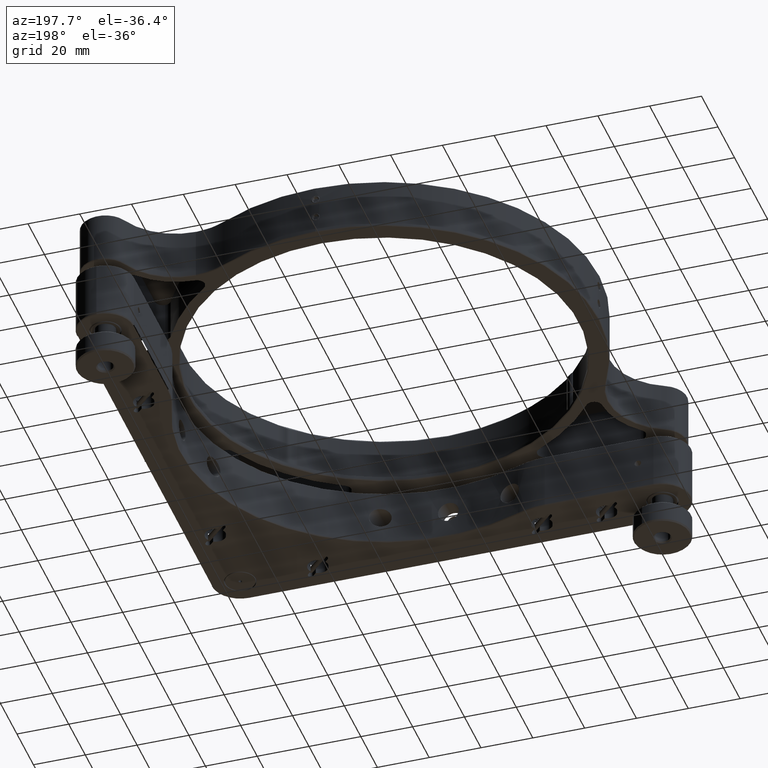
[diagram: clean part render]
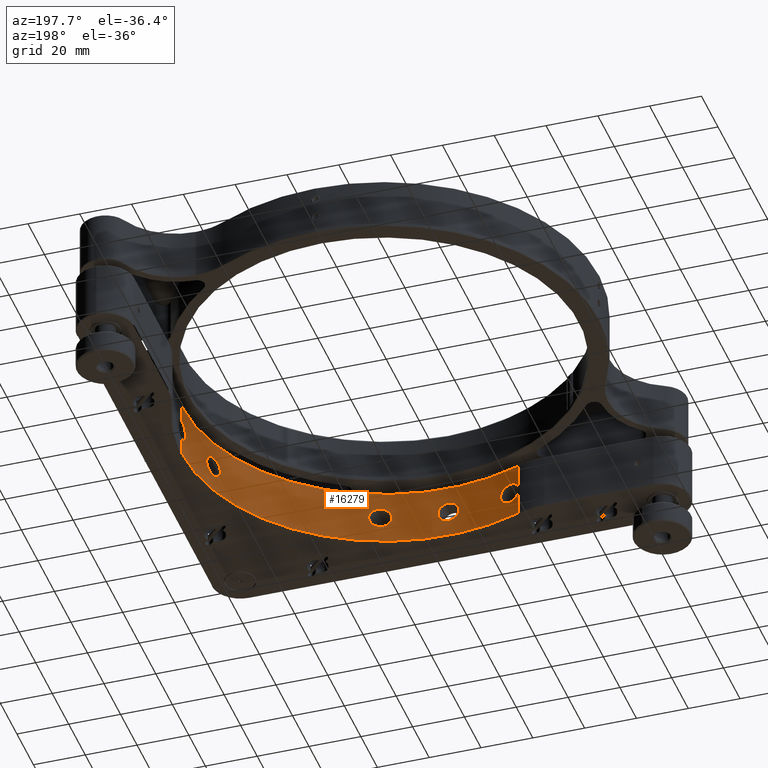
[diagram: same view with one face highlighted and labeled with its STEP entity id]
A machine part, auxiliary view. The second image highlights one B-rep face of the part: STEP entity #16279.
In plain terms, the highlighted cylindrical surface (partial cylindrical patch) has radius 78 mm, axis along (-0, -0, 1).
Its self-contained STEP definition (entity closure, byte-faithful):
#49 = DIRECTION ( 'NONE',  ( -0.000000000000000000, -0.000000000000000000, 1.000000000000000000 ) ) ;
#67 = CARTESIAN_POINT ( 'NONE',  ( 72.57865478690735017, -28.57186707354512833, 1.820078764585681741 ) ) ;
#71 = CARTESIAN_POINT ( 'NONE',  ( 73.88504584826351618, -24.99999999999998224, -3.999999999999991562 ) ) ;
#75 = CARTESIAN_POINT ( 'NONE',  ( 77.91714599270930819, -3.595598559437067632, 1.771876983716809795 ) ) ;
#86 = EDGE_CURVE ( 'NONE', #19470, #2084, #14475, .T. ) ;
#97 = CYLINDRICAL_SURFACE ( 'NONE', #5205, 78.00000000000000000 ) ;
#162 = CARTESIAN_POINT ( 'NONE',  ( 73.03012696881967258, -27.39805701205474264, -3.211788647848638156 ) ) ;
#167 = CARTESIAN_POINT ( 'NONE',  ( 75.05906071340405106, -21.21671753476268663, -1.325550393028374740 ) ) ;
#169 = CARTESIAN_POINT ( 'NONE',  ( 77.92288107885735826, -3.470678907385455148, -2.005573438225844551 ) ) ;
#334 = CARTESIAN_POINT ( 'NONE',  ( 23.99240517857199606, -74.21882051579675021, 3.879335930862897186 ) ) ;
#340 = CARTESIAN_POINT ( 'NONE',  ( -28.55975704067207488, -72.58333333333335702, -11.00000000000000000 ) ) ;
#362 = CARTESIAN_POINT ( 'NONE',  ( 73.44723782220397368, -26.25961089667580595, -3.805144757495733998 ) ) ;
#550 = CARTESIAN_POINT ( 'NONE',  ( -3.181061825837070867, -77.93524140828793634, -2.439012618763904072 ) ) ;
#643 = B_SPLINE_CURVE_WITH_KNOTS ( 'NONE', 3,
 ( #9172, #16576, #19429, #4621, #4520, #14998, #18048, #10554, #12038, #13417, #1363, #3042, #75, #7595, #6205, #12241, #17949, #18252, #16871, #18145, #13622, #7392, #169, #16682, #15203, #6108, #6009, #9068, #3144, #7691, #1562, #15104, #12137, #16779 ),
 .UNSPECIFIED., .F., .F.,
 ( 4, 2, 2, 2, 2, 2, 2, 2, 2, 2, 2, 2, 2, 2, 2, 2, 4 ),
 ( 4.395466612126818234E-20, 0.0007817422773618290174, 0.001563484554723658469, 0.002345226832085487052, 0.003126969109447316070, 0.003908711386809145087, 0.004690453664170974105, 0.005472195941532803122, 0.006253938218894632139, 0.007035680496256461157, 0.007817422773618290174, 0.008599165050980118324, 0.009380907328341948209, 0.01016264960570377809, 0.01094439188306560624, 0.01172613416042743439, 0.01250787643778926428 ),
 .UNSPECIFIED. ) ;
#650 = CARTESIAN_POINT ( 'NONE',  ( -3.595964814120648168, -77.91712968579540188, -1.771362540339814551 ) ) ;
#719 = CARTESIAN_POINT ( 'NONE',  ( 73.71026475055948879, -25.51209117919595926, 3.975223860204486481 ) ) ;
#745 = CARTESIAN_POINT ( 'NONE',  ( -3.871833715960109945, -77.90386092381194771, 1.038368804854522542 ) ) ;
#901 = CARTESIAN_POINT ( 'NONE',  ( 0.2642756697585024184, -78.00000000000001421, 3.999999999999994227 ) ) ;
#931 = CARTESIAN_POINT ( 'NONE',  ( -23.99328243118324622, -74.21854264774493970, -3.879664111582092012 ) ) ;
#948 = CARTESIAN_POINT ( 'NONE',  ( -1.774081866758450809, -77.98019828597287528, 3.594632870111592382 ) ) ;
#993 = CARTESIAN_POINT ( 'NONE',  ( 28.97154074426632420, -72.41997851193785607, -0.5472349680986610121 ) ) ;
#999 = CARTESIAN_POINT ( 'NONE',  ( 3.999781293421629691, -77.89737960709692288, -0.2671534340271403130 ) ) ;
#1028 = CARTESIAN_POINT ( 'NONE',  ( 0.000000000000000000, 0.000000000000000000, -11.00000000000000000 ) ) ;
#1033 = CARTESIAN_POINT ( 'NONE',  ( -22.59489988606504696, -74.65602845485361172, 3.206778632898351411 ) ) ;
#1088 = CARTESIAN_POINT ( 'NONE',  ( 28.86626673872807913, -72.46200357922833746, 1.060209643100572308 ) ) ;
#1094 = CARTESIAN_POINT ( 'NONE',  ( 2.444840462788688384, -77.96198046153405414, 3.176748857549436700 ) ) ;
#1125 = CARTESIAN_POINT ( 'NONE',  ( -22.60369669649290358, -74.65336722089199384, -3.213370268778872774 ) ) ;
#1258 = CARTESIAN_POINT ( 'NONE',  ( 25.00000000000000711, -73.88504584826350197, 3.999999999999998224 ) ) ;
#1283 = CARTESIAN_POINT ( 'NONE',  ( 28.44250603950921885, -72.62954007564020742, -2.054199999669094279 ) ) ;
#1363 = CARTESIAN_POINT ( 'NONE',  ( 77.93532923654449007, -3.178973246191488133, 2.441990088289993643 ) ) ;
#1377 = CARTESIAN_POINT ( 'NONE',  ( 28.99934265684701984, -72.40882629869744846, -0.2800717362526508603 ) ) ;
#1499 = CARTESIAN_POINT ( 'NONE',  ( -27.22105338308170630, -73.09611201008802084, 3.331623792669954565 ) ) ;
#1529 = CARTESIAN_POINT ( 'NONE',  ( 22.59948685668774715, -74.65463576104080801, -3.210070543919473440 ) ) ;
#1562 = CARTESIAN_POINT ( 'NONE',  ( 77.99350259600736024, -1.038872687293739716, -3.871570120535715365 ) ) ;
#1658 = CARTESIAN_POINT ( 'NONE',  ( 74.96352919145894589, -21.55212286694406743, -2.045295803821513214 ) ) ;
#1755 = CARTESIAN_POINT ( 'NONE',  ( 74.29853247817517570, -23.74426298476860353, -3.806385302535675308 ) ) ;
#1802 = CARTESIAN_POINT ( 'NONE',  ( -27.22205891709224446, -73.09573881722749888, -3.330987645164114053 ) ) ;
#1819 = CARTESIAN_POINT ( 'NONE',  ( 20.99972270542378538, -75.11998167185296893, -0.2627213754481366736 ) ) ;
#1852 = CARTESIAN_POINT ( 'NONE',  ( 75.06066801426244695, -21.21103293928340250, 1.309880171108322333 ) ) ;
#2035 = CARTESIAN_POINT ( 'NONE',  ( -3.871916372575670007, -77.90385663892008949, -1.037633705012990459 ) ) ;
#2084 = VERTEX_POINT ( 'NONE', #5154 ) ;
#2110 = DIRECTION ( 'NONE',  ( 1.000000000000000000, 0.000000000000000000, 0.000000000000000000 ) ) ;
#2203 = CARTESIAN_POINT ( 'NONE',  ( 72.46251476229139143, -28.86498495242403806, -1.065468717979328295 ) ) ;
#2230 = CARTESIAN_POINT ( 'NONE',  ( -3.471378386552586015, -77.92285252867712586, 2.004674185169120992 ) ) ;
#2316 = CARTESIAN_POINT ( 'NONE',  ( -22.01723765412725697, -74.82833316180936833, 2.678010543228571905 ) ) ;
#2330 = CARTESIAN_POINT ( 'NONE',  ( -3.974073061221889525, -77.89871217753025689, -0.5245602025211165698 ) ) ;
#2381 = CARTESIAN_POINT ( 'NONE',  ( 2.645989248474492683, -77.95532568294639475, 3.011124433643795228 ) ) ;
#2396 = VERTEX_POINT ( 'NONE', #13548 ) ;
#2415 = CARTESIAN_POINT ( 'NONE',  ( -28.55975704067207488, -72.58333333333335702, 10.70000000000000462 ) ) ;
#2479 = CARTESIAN_POINT ( 'NONE',  ( 28.57034378668507202, -72.57925430393584065, -1.822944101926049720 ) ) ;
#2502 = EDGE_CURVE ( 'NONE', #3900, #10038, #12996, .T. ) ;
#2578 = CARTESIAN_POINT ( 'NONE',  ( 29.00063453752907350, -72.40830889410995042, 0.2609696561924710889 ) ) ;
#2595 = ORIENTED_EDGE ( 'NONE', *, *, #3130, .T. ) ;
#2666 = CARTESIAN_POINT ( 'NONE',  ( 25.51356117900124687, -73.70976635008814526, 3.975215644761352696 ) ) ;
#2672 = CARTESIAN_POINT ( 'NONE',  ( 1.288927170577639503, -77.98972126068761668, -3.795592560333966414 ) ) ;
#2830 = VERTEX_POINT ( 'NONE', #3356 ) ;
#2944 = EDGE_CURVE ( 'NONE', #11662, #2396, #5994, .T. ) ;
#3005 = CARTESIAN_POINT ( 'NONE',  ( 21.13342176601295819, -75.08249837524934378, -1.059061465847109362 ) ) ;
#3026 = CARTESIAN_POINT ( 'NONE',  ( -28.55975704067207488, -72.58333333333335702, -11.00000000000000000 ) ) ;
#3034 = CARTESIAN_POINT ( 'NONE',  ( 73.03188582951041496, -27.39336444194073295, 3.215229633219239602 ) ) ;
#3042 = CARTESIAN_POINT ( 'NONE',  ( 77.92285252867712586, -3.471378386552571804, 2.004674185169120992 ) ) ;
#3064 = FACE_OUTER_BOUND ( 'NONE', #12655, .T. ) ;
#3078 = CARTESIAN_POINT ( 'NONE',  ( -28.37543298956789783, -72.65568101031951187, 2.154275530396135618 ) ) ;
#3086 = CARTESIAN_POINT ( 'NONE',  ( -26.91086405448526264, -73.21087979776633858, -3.518753058761190822 ) ) ;
#3130 = EDGE_CURVE ( 'NONE', #13238, #16090, #16736, .T. ) ;
#3136 = CARTESIAN_POINT ( 'NONE',  ( 72.74459379685502824, -28.14693070726938728, -2.483180130910042749 ) ) ;
#3141 = CARTESIAN_POINT ( 'NONE',  ( 73.97064634969750330, -24.74701612107660154, -3.999999999999990674 ) ) ;
#3144 = CARTESIAN_POINT ( 'NONE',  ( 77.98022342668966189, -1.772997806453662673, -3.595177367259070778 ) ) ;
#3209 = CARTESIAN_POINT ( 'NONE',  ( 21.13557142552287260, -75.08189379694994159, 1.067109936542361304 ) ) ;
#3236 = CARTESIAN_POINT ( 'NONE',  ( 72.63022600161149001, -28.44074484423013871, 2.056788287341680732 ) ) ;
#3285 = CARTESIAN_POINT ( 'NONE',  ( -25.72441926667101697, -73.63687478941228903, -3.950248637414554231 ) ) ;
#3301 = CARTESIAN_POINT ( 'NONE',  ( 21.02659460353410026, -75.11248496214287229, -0.5329990462658509287 ) ) ;
#3328 = CARTESIAN_POINT ( 'NONE',  ( 73.27548003730198900, -26.73514416379994785, -3.613173254544084223 ) ) ;
#3332 = CARTESIAN_POINT ( 'NONE',  ( 74.99993230447621784, -21.42479527212264401, -1.813345309088485235 ) ) ;
#3354 = CARTESIAN_POINT ( 'NONE',  ( 73.88504584826351618, -24.99999999999998224, 3.999999999999998224 ) ) ;
#3356 = CARTESIAN_POINT ( 'NONE',  ( 25.00000000000000355, -73.88504584826348776, -3.999999999999991562 ) ) ;
#3372 = ORIENTED_EDGE ( 'NONE', *, *, #17451, .T. ) ;
#3393 = CARTESIAN_POINT ( 'NONE',  ( 21.42001768455125088, -75.00129663569731520, -1.804092950068598489 ) ) ;
#3424 = CARTESIAN_POINT ( 'NONE',  ( 73.53415876494440795, -26.01534311378234321, -3.877414656770550749 ) ) ;
#3428 = CARTESIAN_POINT ( 'NONE',  ( 75.00129449863017328, -21.42002858607879290, 1.804400766283678959 ) ) ;
#3706 = CARTESIAN_POINT ( 'NONE',  ( -1.038872687293755481, -77.99350259600736024, -3.871570120535715365 ) ) ;
#3848 = VERTEX_POINT ( 'NONE', #19544 ) ;
#3861 = CARTESIAN_POINT ( 'NONE',  ( 3.183631161174377500, -77.93513655736296641, 2.435713553613453097 ) ) ;
#3898 = CARTESIAN_POINT ( 'NONE',  ( -27.37032204770689958, -73.04032375761811124, 3.227299997954521604 ) ) ;
#3900 = VERTEX_POINT ( 'NONE', #4738 ) ;
#3998 = CARTESIAN_POINT ( 'NONE',  ( -24.99999999999999289, -73.88504584826351618, 3.999999999999998224 ) ) ;
#4053 = CARTESIAN_POINT ( 'NONE',  ( 25.25515864112303888, -73.79870948675976194, -3.999999999999993339 ) ) ;
#4058 = CARTESIAN_POINT ( 'NONE',  ( 7.428752638015980296E-15, -78.00000000000000000, -3.999999999999994227 ) ) ;
#4089 = CARTESIAN_POINT ( 'NONE',  ( -23.03138584217391482, -74.52252915529723509, 3.491775201250789884 ) ) ;
#4147 = CARTESIAN_POINT ( 'NONE',  ( 26.73225172150400297, -73.27653016459150592, -3.614450908164578813 ) ) ;
#4185 = CARTESIAN_POINT ( 'NONE',  ( -23.26305980556527331, -74.45060192349109229, 3.612299662698405633 ) ) ;
#4337 = CARTESIAN_POINT ( 'NONE',  ( 25.00000000000000355, -73.88504584826348776, -3.999999999999991562 ) ) ;
#4488 = CARTESIAN_POINT ( 'NONE',  ( 22.02093770999001521, -74.82724554628276792, 2.682148345335553685 ) ) ;
#4517 = CARTESIAN_POINT ( 'NONE',  ( 75.08191856841457934, -21.13548269788657663, -1.066384402953992394 ) ) ;
#4520 = CARTESIAN_POINT ( 'NONE',  ( 77.98971402692833976, -1.289650025219116314, 3.795465024644563368 ) ) ;
#4612 = CARTESIAN_POINT ( 'NONE',  ( 72.95428721318155851, -27.59913240690869074, 3.051651704380228480 ) ) ;
#4621 = CARTESIAN_POINT ( 'NONE',  ( 77.99354430105371705, -1.035576530980324206, 3.872406130247564526 ) ) ;
#4719 = CARTESIAN_POINT ( 'NONE',  ( 72.46370974712081647, -28.86198626848741711, 1.076104579194006483 ) ) ;
#4725 = LINE ( 'NONE', #9269, #6388 ) ;
#4738 = CARTESIAN_POINT ( 'NONE',  ( 7.428752638015980296E-15, -78.00000000000000000, -3.999999999999994227 ) ) ;
#4789 = CARTESIAN_POINT ( 'NONE',  ( 21.21509604521978432, -75.05951879981103048, 1.320974813207124621 ) ) ;
#4797 = DIRECTION ( 'NONE',  ( 0.000000000000000000, 0.000000000000000000, 1.000000000000000000 ) ) ;
#4867 = CARTESIAN_POINT ( 'NONE',  ( -26.41398812150187325, -73.39163900232311732, -3.746141118746442622 ) ) ;
#4882 = CARTESIAN_POINT ( 'NONE',  ( 22.60384532486322229, -74.65331554299052641, 3.213287536556374224 ) ) ;
#4907 = CARTESIAN_POINT ( 'NONE',  ( 73.79869419057914115, -25.25520384748331537, -3.999999999999992450 ) ) ;
#4931 = EDGE_CURVE ( 'NONE', #18086, #2830, #18729, .T. ) ;
#5154 = CARTESIAN_POINT ( 'NONE',  ( 73.88504584826351618, -24.99999999999998224, -3.999999999999991562 ) ) ;
#5195 = CARTESIAN_POINT ( 'NONE',  ( -2.006794043150275098, -77.97448132049481728, -3.469968073289010579 ) ) ;
#5205 = AXIS2_PLACEMENT_3D ( 'NONE', #1028, #17516, #16499 ) ;
#5275 = VECTOR ( 'NONE', #9054, 1000.000000000000000 ) ;
#5309 = ORIENTED_EDGE ( 'NONE', *, *, #13556, .F. ) ;
#5379 = CARTESIAN_POINT ( 'NONE',  ( -23.04123831673606304, -74.51948522766215888, -3.497323358634151447 ) ) ;
#5449 = CARTESIAN_POINT ( 'NONE',  ( 0.5204713056522372039, -77.99868971635731896, -3.974695825513904879 ) ) ;
#5540 = CARTESIAN_POINT ( 'NONE',  ( 2.008475715716599552, -77.97444240052298881, 3.469150255005847949 ) ) ;
#5637 = CARTESIAN_POINT ( 'NONE',  ( 28.77994394578587745, -72.49639664067579758, -1.335104385650924597 ) ) ;
#5643 = CARTESIAN_POINT ( 'NONE',  ( 3.473315906907515682, -77.92276364577965353, 2.001070837446798034 ) ) ;
#5677 = CARTESIAN_POINT ( 'NONE',  ( -21.42002858607880000, -75.00129449863015907, 1.804400766283676738 ) ) ;
#5741 = CARTESIAN_POINT ( 'NONE',  ( 3.794495514598793307, -77.90771410403802122, -1.292434477358247014 ) ) ;
#5830 = CARTESIAN_POINT ( 'NONE',  ( 26.96697085322626464, -73.19041239084945971, 3.492651496314132853 ) ) ;
#5949 = CARTESIAN_POINT ( 'NONE',  ( -27.65674242214645417, -72.93235236990450687, 2.995932507419028390 ) ) ;
#5958 = CARTESIAN_POINT ( 'NONE',  ( -26.24400230785020938, -73.45261133346669169, -3.805886250388128111 ) ) ;
#5994 = LINE ( 'NONE', #3026, #5275 ) ;
#6009 = CARTESIAN_POINT ( 'NONE',  ( 77.96212707202002434, -2.440020888850041647, -3.180282821266665394 ) ) ;
#6076 = ORIENTED_EDGE ( 'NONE', *, *, #9535, .T. ) ;
#6079 = CARTESIAN_POINT ( 'NONE',  ( 22.39650519350028546, -74.71569399255065491, 3.048039807265448875 ) ) ;
#6083 = LINE ( 'NONE', #340, #19384 ) ;
#6106 = CARTESIAN_POINT ( 'NONE',  ( 74.65602845485361172, -22.59489988606503630, 3.206778632898348746 ) ) ;
#6108 = CARTESIAN_POINT ( 'NONE',  ( 77.95545351511327681, -2.642377946310542125, -3.014558976656168010 ) ) ;
#6151 = CARTESIAN_POINT ( 'NONE',  ( -27.65541960861490267, -72.93285174108396518, -2.997025240511474120 ) ) ;
#6198 = CARTESIAN_POINT ( 'NONE',  ( 73.19054374406887575, -26.96659562431388579, -3.492673102645565297 ) ) ;
#6205 = CARTESIAN_POINT ( 'NONE',  ( 77.90386092381194771, -3.871833715960093958, 1.038368804854522098 ) ) ;
#6388 = VECTOR ( 'NONE', #7690, 1000.000000000000000 ) ;
#6399 = CARTESIAN_POINT ( 'NONE',  ( 75.12005645565098177, -20.99945519364452906, 0.2601063408321588333 ) ) ;
#6591 = CARTESIAN_POINT ( 'NONE',  ( -2.642377946310555892, -77.95545351511327681, -3.014558976656167566 ) ) ;
#6687 = CARTESIAN_POINT ( 'NONE',  ( -1.772997806453679770, -77.98022342668966189, -3.595177367259070778 ) ) ;
#6751 = ORIENTED_EDGE ( 'NONE', *, *, #15582, .T. ) ;
#6754 = CARTESIAN_POINT ( 'NONE',  ( 73.53559052328191115, -26.01128317337281715, 3.878395087894263238 ) ) ;
#6781 = CARTESIAN_POINT ( 'NONE',  ( -1.035576530980339527, -77.99354430105370284, 3.872406130247565859 ) ) ;
#6853 = CARTESIAN_POINT ( 'NONE',  ( 0.000000000000000000, 0.000000000000000000, -10.69999999999992113 ) ) ;
#6956 = CARTESIAN_POINT ( 'NONE',  ( -21.00056181142758049, -75.11974709711478226, -0.2766012147249259923 ) ) ;
#6963 = CARTESIAN_POINT ( 'NONE',  ( -25.72158961942553645, -73.63787145261372302, 3.950910102297815474 ) ) ;
#6972 = CARTESIAN_POINT ( 'NONE',  ( -2.003833388222027168, -77.97455966665147287, 3.471741686529079551 ) ) ;
#7025 = CARTESIAN_POINT ( 'NONE',  ( 3.873195379714603703, -77.90379275561291195, 1.032592149876045529 ) ) ;
#7053 = EDGE_CURVE ( 'NONE', #2396, #3848, #13953, .T. ) ;
#7061 = CARTESIAN_POINT ( 'NONE',  ( -26.91091467001117721, -73.21085991776963908, 3.518692988926328979 ) ) ;
#7077 = VERTEX_POINT ( 'NONE', #10504 ) ;
#7149 = CARTESIAN_POINT ( 'NONE',  ( -22.39816569506055188, -74.71519357198457101, -3.049320674793185582 ) ) ;
#7214 = CARTESIAN_POINT ( 'NONE',  ( 26.01179128937046414, -73.53541852626720754, -3.878397041267346523 ) ) ;
#7313 = CARTESIAN_POINT ( 'NONE',  ( 27.60455758102310497, -72.95223218391701892, 3.046958595216469057 ) ) ;
#7392 = CARTESIAN_POINT ( 'NONE',  ( 77.91712968579540188, -3.595964814120632180, -1.771362540339814551 ) ) ;
#7461 = CARTESIAN_POINT ( 'NONE',  ( 23.26535865561886851, -74.44989047129581650, 3.613545491506943375 ) ) ;
#7542 = CARTESIAN_POINT ( 'NONE',  ( -28.38686435614924264, -72.65136235373402940, -2.161678789963065839 ) ) ;
#7559 = CARTESIAN_POINT ( 'NONE',  ( 23.26596119168572230, -74.44969980271285692, -3.613783098940983596 ) ) ;
#7585 = CARTESIAN_POINT ( 'NONE',  ( 72.62842797446498366, -28.44533502821184712, -2.049151771411253264 ) ) ;
#7589 = CARTESIAN_POINT ( 'NONE',  ( 74.87876080722392658, -21.84479734756104463, 2.472723570418458916 ) ) ;
#7595 = CARTESIAN_POINT ( 'NONE',  ( 77.90768565280973235, -3.795060588815390545, 1.290500745165017671 ) ) ;
#7689 = CARTESIAN_POINT ( 'NONE',  ( 74.52252915529720667, -23.03138584217388640, 3.491775201250787664 ) ) ;
#7690 = DIRECTION ( 'NONE',  ( -0.000000000000000000, -0.000000000000000000, 1.000000000000000000 ) ) ;
#7691 = CARTESIAN_POINT ( 'NONE',  ( 77.98973759347403245, -1.288253468533575141, -3.795948435444374880 ) ) ;
#7723 = ORIENTED_EDGE ( 'NONE', *, *, #7053, .T. ) ;
#7781 = CARTESIAN_POINT ( 'NONE',  ( 73.27523436154871206, -26.73582716246147584, 3.612918210406393715 ) ) ;
#7783 = CARTESIAN_POINT ( 'NONE',  ( 74.21854264774491128, -23.99328243118322135, -3.879664111582091124 ) ) ;
#7850 = CARTESIAN_POINT ( 'NONE',  ( 21.54979101815414566, -74.96419512991238321, -2.040987844927895534 ) ) ;
#7877 = CARTESIAN_POINT ( 'NONE',  ( 72.41926469414674727, -28.97332399187356344, -0.5348165358874826802 ) ) ;
#7924 = CARTESIAN_POINT ( 'NONE',  ( -28.17198448263816957, -72.73522515431915281, -2.464934160912187533 ) ) ;
#7972 = CARTESIAN_POINT ( 'NONE',  ( 74.82833316180938255, -22.01723765412724632, 2.678010543228574125 ) ) ;
#7999 = CARTESIAN_POINT ( 'NONE',  ( -28.55975704067207488, -72.58333333333335702, -10.69999999999992113 ) ) ;
#8067 = CARTESIAN_POINT ( 'NONE',  ( -3.470678907385470247, -77.92288107885735826, -2.005573438225844107 ) ) ;
#8137 = CARTESIAN_POINT ( 'NONE',  ( 24.48947517775965110, -74.05629659403138021, -3.975484024393787674 ) ) ;
#8239 = CARTESIAN_POINT ( 'NONE',  ( 72.41995958227050778, -28.97158842348195051, 0.5471968547166602415 ) ) ;
#8253 = CARTESIAN_POINT ( 'NONE',  ( -24.48795281423327808, -74.05830390741742519, 3.999999999999998224 ) ) ;
#8268 = CARTESIAN_POINT ( 'NONE',  ( -3.015730620695570963, -77.94190312522226805, -2.641040677135772619 ) ) ;
#8359 = AXIS2_PLACEMENT_3D ( 'NONE', #6853, #12788, #2110 ) ;
#8363 = CARTESIAN_POINT ( 'NONE',  ( -0.5262440096884074547, -77.99864595552975288, -3.973836798472851761 ) ) ;
#8412 = CARTESIAN_POINT ( 'NONE',  ( 1.294182821932950755, -77.98963379206509217, 3.793803601313259666 ) ) ;
#8453 = VERTEX_POINT ( 'NONE', #2415 ) ;
#8512 = CARTESIAN_POINT ( 'NONE',  ( 3.973714216947563660, -77.89873042796479297, -0.5268296819300352096 ) ) ;
#8544 = CARTESIAN_POINT ( 'NONE',  ( -24.74701612107662285, -73.97064634969750330, -3.999999999999993339 ) ) ;
#8667 = B_SPLINE_CURVE_WITH_KNOTS ( 'NONE', 3,
 ( #71, #3141, #18345, #7783, #1755, #9167, #15199, #16572, #16960, #12524, #10848, #1658, #3332, #167, #4517, #9361, #15388, #6399, #10552, #15096, #1852, #3428, #9463, #7589, #7972, #13619, #6106, #7689, #18142, #12238, #18247, #12237 ),
 .UNSPECIFIED., .F., .F.,
 ( 4, 2, 2, 2, 2, 2, 2, 2, 2, 2, 2, 2, 2, 2, 2, 4 ),
 ( 0.01290274643340120521, 0.01370215318061429946, 0.01450155992782739545, 0.01530096667504048970, 0.01610037342225358395, 0.01689978016946667994, 0.01769918691667977592, 0.01849859366389287191, 0.01929800041110596442, 0.02009740715831906041, 0.02089681390553215640, 0.02169622065274524891, 0.02249562739995834490, 0.02329503414717144089, 0.02409444089438453340, 0.02569325438881072537 ),
 .UNSPECIFIED. ) ;
#8682 = CIRCLE ( 'NONE', #8359, 78.00000000000000000 ) ;
#8689 = EDGE_LOOP ( 'NONE', ( #18388, #13608 ) ) ;
#8702 = CARTESIAN_POINT ( 'NONE',  ( 3.871726509399969984, -77.90386601962131863, -1.038117540620143053 ) ) ;
#8802 = CARTESIAN_POINT ( 'NONE',  ( 3.010950149097227690, -77.94208277222656989, -2.646161307683056574 ) ) ;
#8910 = CARTESIAN_POINT ( 'NONE',  ( -27.79308834379566662, -72.88046665065765239, 2.869244339740403049 ) ) ;
#9035 = CARTESIAN_POINT ( 'NONE',  ( 21.21232344932960601, -75.06030234766824094, -1.313214033931456193 ) ) ;
#9054 = DIRECTION ( 'NONE',  ( -0.000000000000000000, -0.000000000000000000, 1.000000000000000000 ) ) ;
#9060 = CARTESIAN_POINT ( 'NONE',  ( 72.81155763262226799, -27.97350903102410413, 2.688179948572599898 ) ) ;
#9068 = CARTESIAN_POINT ( 'NONE',  ( 77.97448132049481728, -2.006794043150259998, -3.469968073289011912 ) ) ;
#9109 = CARTESIAN_POINT ( 'NONE',  ( -28.47349105782596723, -72.61727687653831254, 1.992645592045490632 ) ) ;
#9167 = CARTESIAN_POINT ( 'NONE',  ( 74.44855720911462527, -23.26959996608205117, -3.615405958588697732 ) ) ;
#9172 = CARTESIAN_POINT ( 'NONE',  ( 78.00000000000000000, 2.210371870212918411E-14, 3.999999999999994227 ) ) ;
#9243 = CARTESIAN_POINT ( 'NONE',  ( 0.000000000000000000, 0.000000000000000000, 10.70000000000000462 ) ) ;
#9262 = CARTESIAN_POINT ( 'NONE',  ( 73.19195939566314735, -26.96274917524587167, 3.494783343978427048 ) ) ;
#9269 = CARTESIAN_POINT ( 'NONE',  ( 78.00000000000000000, 0.000000000000000000, -11.00000000000000000 ) ) ;
#9331 = CARTESIAN_POINT ( 'NONE',  ( 24.74383873331732531, -73.97172146162401418, 3.999999999999998224 ) ) ;
#9361 = CARTESIAN_POINT ( 'NONE',  ( 75.11213550657788574, -21.02784402710324230, -0.5418916867587196817 ) ) ;
#9458 = CARTESIAN_POINT ( 'NONE',  ( 72.40871840294883555, -28.99961205625789873, 0.2747791489853340097 ) ) ;
#9463 = CARTESIAN_POINT ( 'NONE',  ( 74.96492786494796690, -21.54724069073846238, 2.036693100584532345 ) ) ;
#9476 = EDGE_LOOP ( 'NONE', ( #6751, #9762 ) ) ;
#9535 = EDGE_CURVE ( 'NONE', #3848, #13238, #17122, .T. ) ;
#9557 = CARTESIAN_POINT ( 'NONE',  ( -3.974526928854731800, -77.89868919855126705, 0.5219595681171552704 ) ) ;
#9646 = CARTESIAN_POINT ( 'NONE',  ( -3.013410097127667608, -77.94198761089903371, 2.643376828366775122 ) ) ;
#9749 = CARTESIAN_POINT ( 'NONE',  ( -1.289650025219132079, -77.98971402692833976, 3.795465024644563368 ) ) ;
#9762 = ORIENTED_EDGE ( 'NONE', *, *, #2502, .T. ) ;
#9835 = CARTESIAN_POINT ( 'NONE',  ( -24.99999999999999289, -73.88504584826351618, -3.999999999999991562 ) ) ;
#9849 = CARTESIAN_POINT ( 'NONE',  ( -2.438644126671302370, -77.96217235479909391, 3.181407457272440453 ) ) ;
#9920 = CARTESIAN_POINT ( 'NONE',  ( 23.98846807716249785, -74.22009740640473296, -3.878390386670019119 ) ) ;
#9992 = CARTESIAN_POINT ( 'NONE',  ( 25.50855011018946783, -73.71149798498879591, -3.975809604141468778 ) ) ;
#9999 = CARTESIAN_POINT ( 'NONE',  ( 2.641935715111841887, -77.95546333227829905, -3.014658545149683011 ) ) ;
#10038 = VERTEX_POINT ( 'NONE', #16191 ) ;
#10040 = CARTESIAN_POINT ( 'NONE',  ( -26.24349648675795876, -73.45279411502990285, 3.806088811528975047 ) ) ;
#10093 = CARTESIAN_POINT ( 'NONE',  ( 28.78591266044475461, -72.49402742645136755, 1.318707413656774463 ) ) ;
#10129 = CARTESIAN_POINT ( 'NONE',  ( -23.26959996608206183, -74.44855720911459684, -3.615405958588695068 ) ) ;
#10221 = CARTESIAN_POINT ( 'NONE',  ( -22.02454828541328169, -74.82618024345492813, -2.685998030945659032 ) ) ;
#10278 = CARTESIAN_POINT ( 'NONE',  ( 28.86226829308759534, -72.46359727300362863, -1.074935172876776646 ) ) ;
#10374 = CARTESIAN_POINT ( 'NONE',  ( 25.25815618206523894, -73.79769522842516949, 3.999999999999998224 ) ) ;
#10496 = CARTESIAN_POINT ( 'NONE',  ( -26.75004240604167904, -73.26982115686801933, 3.601433659665842946 ) ) ;
#10504 = CARTESIAN_POINT ( 'NONE',  ( 78.00000000000000000, 0.000000000000000000, -10.69999999999992113 ) ) ;
#10525 = CARTESIAN_POINT ( 'NONE',  ( 21.42285956289949311, -75.00048500386762385, 1.809568649512607319 ) ) ;
#10552 = CARTESIAN_POINT ( 'NONE',  ( 75.11252716067265567, -21.02644221362451660, 0.5309641998081582326 ) ) ;
#10554 = CARTESIAN_POINT ( 'NONE',  ( 77.96217235479909391, -2.438644126671286827, 3.181407457272440453 ) ) ;
#10732 = CARTESIAN_POINT ( 'NONE',  ( 78.00000000000000000, 0.000000000000000000, -11.00000000000000000 ) ) ;
#10750 = CARTESIAN_POINT ( 'NONE',  ( 73.88504584826351618, -24.99999999999998224, 3.999999999999998224 ) ) ;
#10801 = CARTESIAN_POINT ( 'NONE',  ( -27.37100379551196738, -73.04006604625685384, -3.226725056732791863 ) ) ;
#10817 = CARTESIAN_POINT ( 'NONE',  ( 21.02740293661020843, -75.11225919489632474, 0.5394482327800310673 ) ) ;
#10844 = CARTESIAN_POINT ( 'NONE',  ( 72.57712848551105367, -28.57574299643067306, -1.812585622588495093 ) ) ;
#10848 = CARTESIAN_POINT ( 'NONE',  ( 74.87605416438476880, -21.85408935834876587, -2.484821499529769717 ) ) ;
#10877 = AXIS2_PLACEMENT_3D ( 'NONE', #9243, #4797, #15271 ) ;
#10893 = CARTESIAN_POINT ( 'NONE',  ( -25.36021007313602027, -73.76316392039825587, -3.999999999999991562 ) ) ;
#10918 = DIRECTION ( 'NONE',  ( -0.000000000000000000, -0.000000000000000000, 1.000000000000000000 ) ) ;
#10919 = LINE ( 'NONE', #10732, #19003 ) ;
#10938 = CARTESIAN_POINT ( 'NONE',  ( 72.74651131137534321, -28.14197555900623726, 2.489396057008533614 ) ) ;
#11053 = ORIENTED_EDGE ( 'NONE', *, *, #16063, .T. ) ;
#11221 = CARTESIAN_POINT ( 'NONE',  ( -3.178973246191502788, -77.93532923654449007, 2.441990088289993643 ) ) ;
#11291 = CARTESIAN_POINT ( 'NONE',  ( 24.74681311060530575, -73.97071504102366646, -3.999999999999992450 ) ) ;
#11300 = CARTESIAN_POINT ( 'NONE',  ( -28.55975704067207488, -72.58333333333335702, 1.824316258598141172 ) ) ;
#11306 = CARTESIAN_POINT ( 'NONE',  ( -22.39194913412558563, -74.71705837135041861, 3.044122593229683815 ) ) ;
#11374 = CARTESIAN_POINT ( 'NONE',  ( 7.155299446963895485E-15, -78.00000000000000000, 3.999999999999994227 ) ) ;
#11408 = CARTESIAN_POINT ( 'NONE',  ( -21.02784402710325651, -75.11213550657791416, -0.5418916867587202368 ) ) ;
#11468 = CARTESIAN_POINT ( 'NONE',  ( 28.97326224857740939, -72.41928881743221780, 0.5340880885660398425 ) ) ;
#11562 = CARTESIAN_POINT ( 'NONE',  ( 26.25952512777345760, -73.44726336037290082, -3.805068704595564899 ) ) ;
#11568 = CARTESIAN_POINT ( 'NONE',  ( 1.043205646281679888, -77.99345270447794576, 3.870573030558371652 ) ) ;
#11602 = CARTESIAN_POINT ( 'NONE',  ( -21.85408935834878008, -74.87605416438475459, -2.484821499529772382 ) ) ;
#11656 = VERTEX_POINT ( 'NONE', #12740 ) ;
#11662 = VERTEX_POINT ( 'NONE', #7999 ) ;
#11663 = CARTESIAN_POINT ( 'NONE',  ( 27.97727728600435881, -72.81010737200010396, 2.683933090833489299 ) ) ;
#11668 = CARTESIAN_POINT ( 'NONE',  ( 3.596047641995421706, -77.91712599941870110, 1.771246890564260434 ) ) ;
#11703 = CARTESIAN_POINT ( 'NONE',  ( -21.84479734756105884, -74.87876080722391237, 2.472723570418454031 ) ) ;
#11811 = CIRCLE ( 'NONE', #10877, 78.00000000000000000 ) ;
#11854 = CARTESIAN_POINT ( 'NONE',  ( 27.39521821724340356, -73.03119897990728759, -3.214087621261744854 ) ) ;
#12038 = CARTESIAN_POINT ( 'NONE',  ( 77.95537715058931383, -2.644474704055007397, 3.012446681657699354 ) ) ;
#12063 = FACE_BOUND ( 'NONE', #9476, .T. ) ;
#12105 = CARTESIAN_POINT ( 'NONE',  ( 21.00028168044048016, -75.11982540865209046, 0.2710983563199680368 ) ) ;
#12137 = CARTESIAN_POINT ( 'NONE',  ( 78.00000000000001421, -0.2610827784789849226, -3.999999999999994671 ) ) ;
#12159 = FACE_BOUND ( 'NONE', #8689, .T. ) ;
#12237 = CARTESIAN_POINT ( 'NONE',  ( 73.88504584826351618, -24.99999999999998224, 3.999999999999998224 ) ) ;
#12238 = CARTESIAN_POINT ( 'NONE',  ( 74.22539789437419699, -23.97579238673047186, 3.900471655276448235 ) ) ;
#12241 = CARTESIAN_POINT ( 'NONE',  ( 77.89868919855126705, -3.974526928854717145, 0.5219595681171548263 ) ) ;
#12310 = CARTESIAN_POINT ( 'NONE',  ( 25.00000000000000711, -73.88504584826350197, 3.999999999999998224 ) ) ;
#12335 = CARTESIAN_POINT ( 'NONE',  ( 72.49572942038882672, -28.78162494632937651, 1.330501358763261477 ) ) ;
#12338 = CARTESIAN_POINT ( 'NONE',  ( 78.00000000000000000, 2.263880807538067539E-14, -3.999999999999994227 ) ) ;
#12388 = CARTESIAN_POINT ( 'NONE',  ( -26.74740889898077612, -73.27078245194927320, -3.602707014048464274 ) ) ;
#12403 = CARTESIAN_POINT ( 'NONE',  ( 23.74441657809158102, -74.29849114166836443, 3.806599779784482163 ) ) ;
#12524 = CARTESIAN_POINT ( 'NONE',  ( 74.82618024345494234, -22.02454828541328169, -2.685998030945662585 ) ) ;
#12620 = CARTESIAN_POINT ( 'NONE',  ( -2.440020888850056302, -77.96212707202002434, -3.180282821266664506 ) ) ;
#12637 = ORIENTED_EDGE ( 'NONE', *, *, #86, .T. ) ;
#12655 = EDGE_LOOP ( 'NONE', ( #5309, #11053, #18453, #7723, #6076, #2595, #16463, #15744, #14842, #18110 ) ) ;
#12715 = B_SPLINE_CURVE_WITH_KNOTS ( 'NONE', 3,
 ( #14496, #15871, #12716, #6781, #9749, #948, #6972, #9849, #18718, #9646, #11221, #2230, #18527, #17053, #745, #9557, #14193, #15575, #2330, #2035, #18818, #650, #8067, #550, #8268, #6591, #12620, #5195, #6687, #17240, #3706, #8363, #14294, #12807 ),
 .UNSPECIFIED., .F., .F.,
 ( 4, 2, 2, 2, 2, 2, 2, 2, 2, 2, 2, 2, 2, 2, 2, 2, 4 ),
 ( 2.103006628280939085E-19, 0.0007817422773618292343, 0.001563484554723658252, 0.002345226832085487052, 0.003126969109447316070, 0.003908711386809145087, 0.004690453664170974105, 0.005472195941532803122, 0.006253938218894632139, 0.007035680496256461157, 0.007817422773618290174, 0.008599165050980118324, 0.009380907328341948209, 0.01016264960570377809, 0.01094439188306560624, 0.01172613416042743439, 0.01250787643778926428 ),
 .UNSPECIFIED. ) ;
#12716 = CARTESIAN_POINT ( 'NONE',  ( -0.5242454980882038651, -77.99865728363330675, 3.974055189202895466 ) ) ;
#12740 = CARTESIAN_POINT ( 'NONE',  ( 78.00000000000000000, 2.210371870212918411E-14, 3.999999999999994227 ) ) ;
#12788 = DIRECTION ( 'NONE',  ( -0.000000000000000000, -0.000000000000000000, -1.000000000000000000 ) ) ;
#12807 = CARTESIAN_POINT ( 'NONE',  ( 7.428752638015980296E-15, -78.00000000000000000, -3.999999999999994227 ) ) ;
#12896 = CARTESIAN_POINT ( 'NONE',  ( -21.42479527212265822, -74.99993230447621784, -1.813345309088488788 ) ) ;
#12993 = CARTESIAN_POINT ( 'NONE',  ( -24.49505236323062363, -74.05445350753898026, -3.976217016987805941 ) ) ;
#12996 = B_SPLINE_CURVE_WITH_KNOTS ( 'NONE', 3,
 ( #4058, #16115, #5449, #19261, #2672, #15920, #17396, #17587, #9999, #8802, #17779, #14640, #16205, #5741, #8702, #8512, #999, #14546, #14444, #7025, #19162, #11668, #5643, #3861, #13057, #2381, #1094, #5540, #17493, #8412, #11568, #18971, #901, #11374 ),
 .UNSPECIFIED., .F., .F.,
 ( 4, 2, 2, 2, 2, 2, 2, 2, 2, 2, 2, 2, 2, 2, 2, 2, 4 ),
 ( 0.01250787643778926428, 0.01328944047440523170, 0.01407100451102119912, 0.01485256854763716827, 0.01563413258425313396, 0.01641569662086910311, 0.01719726065748506880, 0.01797882469410103795, 0.01876038873071700364, 0.01954195276733296932, 0.02032351680394893501, 0.02110508084056490069, 0.02188664487718086984, 0.02266820891379683900, 0.02344977295041280121, 0.02423133698702877037, 0.02501290102364473605 ),
 .UNSPECIFIED. ) ;
#12999 = CARTESIAN_POINT ( 'NONE',  ( -28.04488079413580337, -72.78394630786631581, 2.600501206860420744 ) ) ;
#13052 = CARTESIAN_POINT ( 'NONE',  ( 26.01818712217685814, -73.53315849529799664, 3.876774366811380546 ) ) ;
#13057 = CARTESIAN_POINT ( 'NONE',  ( 3.014860964798489640, -77.94193142846940248, 2.641731027349986771 ) ) ;
#13089 = CARTESIAN_POINT ( 'NONE',  ( -23.74426298476861419, -74.29853247817516149, -3.806385302535674420 ) ) ;
#13112 = EDGE_CURVE ( 'NONE', #11656, #17414, #643, .T. ) ;
#13189 = CARTESIAN_POINT ( 'NONE',  ( -21.55212286694409585, -74.96352919145896010, -2.045295803821517211 ) ) ;
#13238 = VERTEX_POINT ( 'NONE', #14900 ) ;
#13244 = CARTESIAN_POINT ( 'NONE',  ( 27.59838257292567576, -72.95456708676626079, -3.052121627771050782 ) ) ;
#13341 = CARTESIAN_POINT ( 'NONE',  ( 27.40251993058068436, -73.02845941409070463, 3.208658098849050955 ) ) ;
#13417 = CARTESIAN_POINT ( 'NONE',  ( 77.94198761089903371, -3.013410097127652509, 2.643376828366775122 ) ) ;
#13434 = CARTESIAN_POINT ( 'NONE',  ( 28.14933472096229039, -72.74366375421703879, 2.480189400258415944 ) ) ;
#13485 = CARTESIAN_POINT ( 'NONE',  ( 22.39580021586580116, -74.71590994770340899, -3.047660092900295936 ) ) ;
#13548 = CARTESIAN_POINT ( 'NONE',  ( -28.55975704067207488, -72.58333333333335702, -1.824316258598137397 ) ) ;
#13556 = EDGE_CURVE ( 'NONE', #7077, #17414, #4725, .T. ) ;
#13587 = CARTESIAN_POINT ( 'NONE',  ( 21.55309720082746239, -74.96324580899297985, 2.046606113006787631 ) ) ;
#13608 = ORIENTED_EDGE ( 'NONE', *, *, #17634, .T. ) ;
#13612 = CARTESIAN_POINT ( 'NONE',  ( 73.88504584826351618, -24.99999999999998224, -3.999999999999991562 ) ) ;
#13619 = CARTESIAN_POINT ( 'NONE',  ( 74.71705837135044703, -22.39194913412558918, 3.044122593229686924 ) ) ;
#13622 = CARTESIAN_POINT ( 'NONE',  ( 77.90762329654502594, -3.796352683970434683, -1.287009903855917736 ) ) ;
#13643 = FACE_BOUND ( 'NONE', #16059, .T. ) ;
#13780 = CARTESIAN_POINT ( 'NONE',  ( 21.85206910095081057, -74.87664053077628523, 2.481988425346016047 ) ) ;
#13860 = CARTESIAN_POINT ( 'NONE',  ( -27.79177809700165014, -72.88096796964143209, -2.870596027140396966 ) ) ;
#13875 = CARTESIAN_POINT ( 'NONE',  ( 23.03328252174991064, -74.52193866957922808, -3.492712213867609439 ) ) ;
#13902 = CARTESIAN_POINT ( 'NONE',  ( 72.95376154001071711, -27.60053178642730742, -3.050630994946790242 ) ) ;
#13953 = B_SPLINE_CURVE_WITH_KNOTS ( 'NONE', 3,
 ( #19475, #7542, #7924, #13860, #6151, #10801, #1802, #3086, #12388, #4867, #5958, #3285, #10893, #18092 ),
 .UNSPECIFIED., .F., .F.,
 ( 4, 2, 2, 2, 2, 2, 4 ),
 ( 0.008349818174027462750, 0.009488050238870889691, 0.01005716627129260750, 0.01062628230371432531, 0.01119539833613604311, 0.01176451436855776092, 0.01290274643340120868 ),
 .UNSPECIFIED. ) ;
#13972 = CARTESIAN_POINT ( 'NONE',  ( 23.74367490658177715, -74.29872578192474464, -3.806306101009116816 ) ) ;
#14008 = EDGE_CURVE ( 'NONE', #11656, #15691, #10919, .T. ) ;
#14193 = CARTESIAN_POINT ( 'NONE',  ( -3.999906699720885417, -77.89737316753505070, 0.2623682360653086798 ) ) ;
#14266 = CARTESIAN_POINT ( 'NONE',  ( 72.81005172401599168, -27.97743815427803682, -2.684022555232766560 ) ) ;
#14294 = CARTESIAN_POINT ( 'NONE',  ( -0.2610827784790002437, -78.00000000000001421, -3.999999999999994671 ) ) ;
#14444 = CARTESIAN_POINT ( 'NONE',  ( 3.974421066302287198, -77.89869411836544089, 0.5214078875130262469 ) ) ;
#14475 = B_SPLINE_CURVE_WITH_KNOTS ( 'NONE', 3,
 ( #10750, #18342, #719, #6754, #15385, #7781, #9262, #3034, #4612, #9060, #10938, #3236, #67, #12335, #4719, #8239, #9458, #15092, #7877, #2203, #15196, #10844, #7585, #3136, #14266, #13902, #162, #6198, #3328, #362, #3424, #16773, #4907, #13612 ),
 .UNSPECIFIED., .F., .F.,
 ( 4, 2, 2, 2, 2, 2, 2, 2, 2, 2, 2, 2, 2, 2, 2, 2, 4 ),
 ( 0.000000000000000000, 0.0008064216520875753256, 0.001612843304175150651, 0.002419264956262726085, 0.003225686608350301302, 0.004032108260437876519, 0.004838529912525452170, 0.005644951564613026954, 0.006451373216700602604, 0.007257794868788178255, 0.008064216520875753039, 0.008870638172963327822, 0.009677059825050904340, 0.01048348147713847912, 0.01128990312922605391, 0.01209632478131363043, 0.01290274643340120521 ),
 .UNSPECIFIED. ) ;
#14483 = CARTESIAN_POINT ( 'NONE',  ( -21.54724069073847659, -74.96492786494793847, 2.036693100584527905 ) ) ;
#14496 = CARTESIAN_POINT ( 'NONE',  ( 7.155299446963895485E-15, -78.00000000000000000, 3.999999999999994227 ) ) ;
#14546 = CARTESIAN_POINT ( 'NONE',  ( 4.000215992421781941, -77.89735728547752558, 0.2605635555696759198 ) ) ;
#14580 = CARTESIAN_POINT ( 'NONE',  ( -21.13206220569989213, -75.08288057580173813, 1.053632612710827088 ) ) ;
#14586 = CARTESIAN_POINT ( 'NONE',  ( -28.16143080334249049, -72.73889602906629648, 2.457601717855054435 ) ) ;
#14640 = CARTESIAN_POINT ( 'NONE',  ( 3.470642313775975651, -77.92288375048309490, -2.005753991971203298 ) ) ;
#14670 = CARTESIAN_POINT ( 'NONE',  ( -21.02644221362453081, -75.11252716067266988, 0.5309641998081552350 ) ) ;
#14725 = CARTESIAN_POINT ( 'NONE',  ( 28.57565325442850224, -72.57716459937317666, 1.812961036383299307 ) ) ;
#14822 = CARTESIAN_POINT ( 'NONE',  ( 26.95956139314268896, -73.19314213164075511, -3.496791199352249357 ) ) ;
#14842 = ORIENTED_EDGE ( 'NONE', *, *, #14008, .F. ) ;
#14900 = CARTESIAN_POINT ( 'NONE',  ( -24.99999999999999289, -73.88504584826351618, 3.999999999999998224 ) ) ;
#14998 = CARTESIAN_POINT ( 'NONE',  ( 77.98019828597287528, -1.774081866758434600, 3.594632870111593270 ) ) ;
#15064 = CARTESIAN_POINT ( 'NONE',  ( 21.84767440612765910, -74.87792176232946417, -2.476371690956477689 ) ) ;
#15092 = CARTESIAN_POINT ( 'NONE',  ( 72.40841091673939900, -29.00037980240273328, -0.2633659389687172947 ) ) ;
#15096 = CARTESIAN_POINT ( 'NONE',  ( 75.08288057580175234, -21.13206220569987082, 1.053632612710830641 ) ) ;
#15104 = CARTESIAN_POINT ( 'NONE',  ( 77.99864595552975288, -0.5262440096883920226, -3.973836798472851761 ) ) ;
#15166 = CARTESIAN_POINT ( 'NONE',  ( 22.01685330292555065, -74.82845205708694891, -2.677858163024214644 ) ) ;
#15196 = CARTESIAN_POINT ( 'NONE',  ( 72.49436141480457252, -28.78506956844345410, -1.320853124984288529 ) ) ;
#15199 = CARTESIAN_POINT ( 'NONE',  ( 74.51948522766218730, -23.04123831673605238, -3.497323358634151891 ) ) ;
#15203 = CARTESIAN_POINT ( 'NONE',  ( 77.94190312522226805, -3.015730620695554975, -2.641040677135772619 ) ) ;
#15271 = DIRECTION ( 'NONE',  ( 1.000000000000000000, 0.000000000000000000, 0.000000000000000000 ) ) ;
#15385 = CARTESIAN_POINT ( 'NONE',  ( 73.44768320963692076, -26.25837496757414868, 3.805622994203181175 ) ) ;
#15388 = CARTESIAN_POINT ( 'NONE',  ( 75.11974709711478226, -21.00056181142756273, -0.2766012147249255482 ) ) ;
#15575 = CARTESIAN_POINT ( 'NONE',  ( -4.000092791689472627, -77.89736361178441371, -0.2595156173372857311 ) ) ;
#15582 = EDGE_CURVE ( 'NONE', #10038, #3900, #12715, .T. ) ;
#15691 = VERTEX_POINT ( 'NONE', #19014 ) ;
#15744 = ORIENTED_EDGE ( 'NONE', *, *, #15838, .T. ) ;
#15838 = EDGE_CURVE ( 'NONE', #8453, #15691, #11811, .T. ) ;
#15871 = CARTESIAN_POINT ( 'NONE',  ( -0.2643359395384220489, -78.00000000000000000, 3.999999999999994227 ) ) ;
#15876 = EDGE_CURVE ( 'NONE', #16090, #8453, #6083, .T. ) ;
#15920 = CARTESIAN_POINT ( 'NONE',  ( 1.770313845460135260, -77.98027920224045317, -3.596365529765846336 ) ) ;
#16055 = CARTESIAN_POINT ( 'NONE',  ( -21.13548269788659439, -75.08191856841457934, -1.066384402953993060 ) ) ;
#16059 = EDGE_LOOP ( 'NONE', ( #12637, #3372 ) ) ;
#16060 = CARTESIAN_POINT ( 'NONE',  ( -28.55975704067207488, -72.58333333333335702, 1.824316258598141172 ) ) ;
#16063 = EDGE_CURVE ( 'NONE', #7077, #11662, #8682, .T. ) ;
#16090 = VERTEX_POINT ( 'NONE', #11300 ) ;
#16115 = CARTESIAN_POINT ( 'NONE',  ( 0.2610232504343941717, -78.00000000000000000, -3.999999999999994671 ) ) ;
#16191 = CARTESIAN_POINT ( 'NONE',  ( 7.155299446963895485E-15, -78.00000000000000000, 3.999999999999994227 ) ) ;
#16205 = CARTESIAN_POINT ( 'NONE',  ( 3.593593112039601412, -77.91723943821379805, -1.776139531026822427 ) ) ;
#16236 = CARTESIAN_POINT ( 'NONE',  ( -23.97579238673048607, -74.22539789437421121, 3.900471655276450456 ) ) ;
#16279 = ADVANCED_FACE ( 'NONE', ( #3064, #13643, #12063, #12159 ), #97, .F. ) ;
#16463 = ORIENTED_EDGE ( 'NONE', *, *, #15876, .T. ) ;
#16499 = DIRECTION ( 'NONE',  ( 1.000000000000000000, 0.000000000000000000, 0.000000000000000000 ) ) ;
#16572 = CARTESIAN_POINT ( 'NONE',  ( 74.65336722089197963, -22.60369669649288582, -3.213370268778871885 ) ) ;
#16576 = CARTESIAN_POINT ( 'NONE',  ( 78.00000000000000000, -0.2643359395384069499, 3.999999999999994227 ) ) ;
#16642 = CARTESIAN_POINT ( 'NONE',  ( 24.49111189018545076, -74.05575104872842473, 3.975616616368059297 ) ) ;
#16682 = CARTESIAN_POINT ( 'NONE',  ( 77.93524140828793634, -3.181061825837056212, -2.439012618763904960 ) ) ;
#16736 = B_SPLINE_CURVE_WITH_KNOTS ( 'NONE', 3,
 ( #3998, #19006, #6963, #10040, #19467, #10496, #7061, #1499, #3898, #5949, #8910, #12999, #14586, #3078, #9109, #16060 ),
 .UNSPECIFIED., .F., .F.,
 ( 4, 2, 2, 2, 2, 2, 2, 4 ),
 ( 0.000000000000000000, 0.001140319662262617674, 0.001710479493393931173, 0.002280639324525244455, 0.002850799155656558170, 0.003420958986787871452, 0.003991118817919184734, 0.004561278649050498450 ),
 .UNSPECIFIED. ) ;
#16773 = CARTESIAN_POINT ( 'NONE',  ( 73.70967095938428315, -25.51381958184962784, -3.975079306951272873 ) ) ;
#16779 = CARTESIAN_POINT ( 'NONE',  ( 78.00000000000000000, 2.263880807538067539E-14, -3.999999999999994227 ) ) ;
#16871 = CARTESIAN_POINT ( 'NONE',  ( 77.89871217753025689, -3.974073061221874426, -0.5245602025211166808 ) ) ;
#16960 = CARTESIAN_POINT ( 'NONE',  ( 74.71519357198454259, -22.39816569506053412, -3.049320674793187802 ) ) ;
#17053 = CARTESIAN_POINT ( 'NONE',  ( -3.795060588815405644, -77.90768565280973235, 1.290500745165017893 ) ) ;
#17122 = B_SPLINE_CURVE_WITH_KNOTS ( 'NONE', 3,
 ( #9835, #8544, #12993, #931, #13089, #10129, #5379, #1125, #7149, #10221, #11602, #13189, #12896, #18802, #16055, #11408, #6956, #17626, #14670, #14580, #17429, #5677, #14483, #11703, #2316, #11306, #1033, #4089, #4185, #16236, #8253, #17327 ),
 .UNSPECIFIED., .F., .F.,
 ( 4, 2, 2, 2, 2, 2, 2, 2, 2, 2, 2, 2, 2, 2, 2, 4 ),
 ( 0.01290274643340120868, 0.01370215318061430466, 0.01450155992782740239, 0.01530096667504049837, 0.01610037342225359436, 0.01689978016946669034, 0.01769918691667978633, 0.01849859366389288232, 0.01929800041110597830, 0.02009740715831907429, 0.02089681390553217027, 0.02169622065274526279, 0.02249562739995836225, 0.02329503414717145476, 0.02409444089438455075, 0.02569325438881074272 ),
 .UNSPECIFIED. ) ;
#17240 = CARTESIAN_POINT ( 'NONE',  ( -1.288253468533590684, -77.98973759347403245, -3.795948435444374880 ) ) ;
#17314 = CARTESIAN_POINT ( 'NONE',  ( 25.00000000000000355, -73.88504584826348776, -3.999999999999991562 ) ) ;
#17327 = CARTESIAN_POINT ( 'NONE',  ( -24.99999999999999289, -73.88504584826351618, 3.999999999999998224 ) ) ;
#17396 = CARTESIAN_POINT ( 'NONE',  ( 2.002534085389724439, -77.97459740336702794, -3.472633676535794134 ) ) ;
#17414 = VERTEX_POINT ( 'NONE', #12338 ) ;
#17429 = CARTESIAN_POINT ( 'NONE',  ( -21.21103293928341671, -75.06066801426244695, 1.309880171108320113 ) ) ;
#17451 = EDGE_CURVE ( 'NONE', #2084, #19470, #8667, .T. ) ;
#17487 = CARTESIAN_POINT ( 'NONE',  ( 28.44789049615797083, -72.62742724300487396, 2.044920480682894226 ) ) ;
#17493 = CARTESIAN_POINT ( 'NONE',  ( 1.775288987563180765, -77.98016566542831640, 3.593912068006213545 ) ) ;
#17516 = DIRECTION ( 'NONE',  ( -0.000000000000000000, -0.000000000000000000, 1.000000000000000000 ) ) ;
#17580 = CARTESIAN_POINT ( 'NONE',  ( 27.97017516896064748, -72.81283458619574844, -2.691671950977912342 ) ) ;
#17587 = CARTESIAN_POINT ( 'NONE',  ( 2.440456721888528691, -77.96211999406455107, -3.180172700207849701 ) ) ;
#17625 = B_SPLINE_CURVE_WITH_KNOTS ( 'NONE', 3,
 ( #4337, #4053, #9992, #7214, #11562, #4147, #14822, #11854, #13244, #17580, #19350, #1283, #2479, #5637, #10278, #993, #1377, #2578, #11468, #1088, #10093, #14725, #17487, #13434, #11663, #7313, #13341, #5830, #19058, #17677, #13052, #2666, #10374, #17866 ),
 .UNSPECIFIED., .F., .F.,
 ( 4, 2, 2, 2, 2, 2, 2, 2, 2, 2, 2, 2, 2, 2, 2, 2, 4 ),
 ( 0.01280130743724581903, 0.01360761997432434652, 0.01441393251140287574, 0.01522024504848140322, 0.01602655758555993071, 0.01683287012263846166, 0.01763918265971698915, 0.01844549519679551663, 0.01925180773387404412, 0.02005812027095257161, 0.02086443280803110256, 0.02167074534510963005, 0.02247705788218815753, 0.02328337041926668849, 0.02408968295634521251, 0.02489599549342374346, 0.02570230803050227095 ),
 .UNSPECIFIED. ) ;
#17626 = CARTESIAN_POINT ( 'NONE',  ( -20.99945519364454327, -75.12005645565096756, 0.2601063408321587223 ) ) ;
#17634 = EDGE_CURVE ( 'NONE', #2830, #18086, #17625, .T. ) ;
#17677 = CARTESIAN_POINT ( 'NONE',  ( 26.26529293888970074, -73.44520182259405772, 3.803182752468930783 ) ) ;
#17779 = CARTESIAN_POINT ( 'NONE',  ( 3.179908169683757890, -77.93528952980065583, -2.440612869518465899 ) ) ;
#17866 = CARTESIAN_POINT ( 'NONE',  ( 25.00000000000000711, -73.88504584826350197, 3.999999999999998224 ) ) ;
#17949 = CARTESIAN_POINT ( 'NONE',  ( 77.89737316753505070, -3.999906699720869874, 0.2623682360653084578 ) ) ;
#18048 = CARTESIAN_POINT ( 'NONE',  ( 77.97455966665144445, -2.003833388222011180, 3.471741686529078663 ) ) ;
#18086 = VERTEX_POINT ( 'NONE', #1258 ) ;
#18092 = CARTESIAN_POINT ( 'NONE',  ( -24.99999999999999289, -73.88504584826351618, -3.999999999999991562 ) ) ;
#18110 = ORIENTED_EDGE ( 'NONE', *, *, #13112, .T. ) ;
#18142 = CARTESIAN_POINT ( 'NONE',  ( 74.45060192349107808, -23.26305980556524844, 3.612299662698402525 ) ) ;
#18145 = CARTESIAN_POINT ( 'NONE',  ( 77.90385663892008949, -3.871916372575654020, -1.037633705012990459 ) ) ;
#18247 = CARTESIAN_POINT ( 'NONE',  ( 74.05830390741741098, -24.48795281423326387, 3.999999999999998224 ) ) ;
#18252 = CARTESIAN_POINT ( 'NONE',  ( 77.89736361178441371, -4.000092791689457528, -0.2595156173372861197 ) ) ;
#18313 = CARTESIAN_POINT ( 'NONE',  ( 23.03720436989739184, -74.52072570668667595, 3.494883021535693413 ) ) ;
#18342 = CARTESIAN_POINT ( 'NONE',  ( 73.79765663695931721, -25.25827023535409310, 3.999999999999999112 ) ) ;
#18345 = CARTESIAN_POINT ( 'NONE',  ( 74.05445350753896605, -24.49505236323060942, -3.976217016987804165 ) ) ;
#18388 = ORIENTED_EDGE ( 'NONE', *, *, #4931, .T. ) ;
#18453 = ORIENTED_EDGE ( 'NONE', *, *, #2944, .T. ) ;
#18527 = CARTESIAN_POINT ( 'NONE',  ( -3.595598559437082287, -77.91714599270930819, 1.771876983716810461 ) ) ;
#18718 = CARTESIAN_POINT ( 'NONE',  ( -2.644474704055022052, -77.95537715058931383, 3.012446681657699354 ) ) ;
#18729 = B_SPLINE_CURVE_WITH_KNOTS ( 'NONE', 3,
 ( #12310, #9331, #16642, #334, #12403, #7461, #18313, #4882, #6079, #4488, #13780, #13587, #10525, #4789, #3209, #10817, #12105, #1819, #3301, #3005, #9035, #3393, #7850, #15064, #15166, #13485, #1529, #13875, #7559, #13972, #9920, #8137, #11291, #17314 ),
 .UNSPECIFIED., .F., .F.,
 ( 4, 2, 2, 2, 2, 2, 2, 2, 2, 2, 2, 2, 2, 2, 2, 2, 4 ),
 ( 0.000000000000000000, 0.0008000817148278636893, 0.001600163429655727379, 0.002400245144483590960, 0.003200326859311454757, 0.004000408574139318121, 0.004800490288967181919, 0.005600572003795045717, 0.006400653718622909515, 0.007200735433450773312, 0.008000817148278636243, 0.008800898863106500908, 0.009600980577934363838, 0.01040106229276222850, 0.01120114400759009143, 0.01200122572241795610, 0.01280130743724581903 ),
 .UNSPECIFIED. ) ;
#18802 = CARTESIAN_POINT ( 'NONE',  ( -21.21671753476270084, -75.05906071340406527, -1.325550393028378959 ) ) ;
#18818 = CARTESIAN_POINT ( 'NONE',  ( -3.796352683970450226, -77.90762329654502594, -1.287009903855917736 ) ) ;
#18971 = CARTESIAN_POINT ( 'NONE',  ( 0.5257657383747117441, -77.99865712417374652, 3.974063914140169906 ) ) ;
#19003 = VECTOR ( 'NONE', #49, 1000.000000000000000 ) ;
#19006 = CARTESIAN_POINT ( 'NONE',  ( -25.36520674610991932, -73.76147322882574997, 3.999999999999997335 ) ) ;
#19014 = CARTESIAN_POINT ( 'NONE',  ( 78.00000000000000000, 0.000000000000000000, 10.70000000000000462 ) ) ;
#19058 = CARTESIAN_POINT ( 'NONE',  ( 26.73848758430381878, -73.27425581765598395, 3.611485316196477058 ) ) ;
#19162 = CARTESIAN_POINT ( 'NONE',  ( 3.796646843751461997, -77.90760909819155700, 1.286214186932505887 ) ) ;
#19261 = CARTESIAN_POINT ( 'NONE',  ( 1.036150386370847443, -77.99354383681649949, -3.872401020321700749 ) ) ;
#19350 = CARTESIAN_POINT ( 'NONE',  ( 28.14058495765774381, -72.74705299630628019, -2.491447690486770838 ) ) ;
#19384 = VECTOR ( 'NONE', #10918, 1000.000000000000000 ) ;
#19429 = CARTESIAN_POINT ( 'NONE',  ( 77.99865728363330675, -0.5242454980881883220, 3.974055189202895466 ) ) ;
#19467 = CARTESIAN_POINT ( 'NONE',  ( -26.41653496202212281, -73.39072244967150027, 3.745183777772093325 ) ) ;
#19470 = VERTEX_POINT ( 'NONE', #3354 ) ;
#19475 = CARTESIAN_POINT ( 'NONE',  ( -28.55975704067207488, -72.58333333333335702, -1.824316258598137397 ) ) ;
#19544 = CARTESIAN_POINT ( 'NONE',  ( -24.99999999999999289, -73.88504584826351618, -3.999999999999991562 ) ) ;